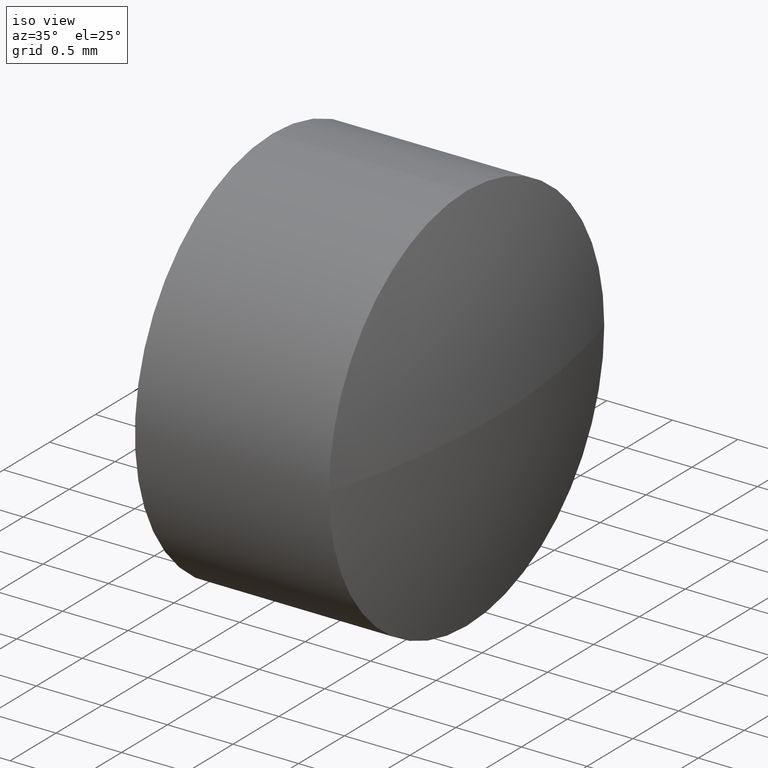
[diagram: clean part render]
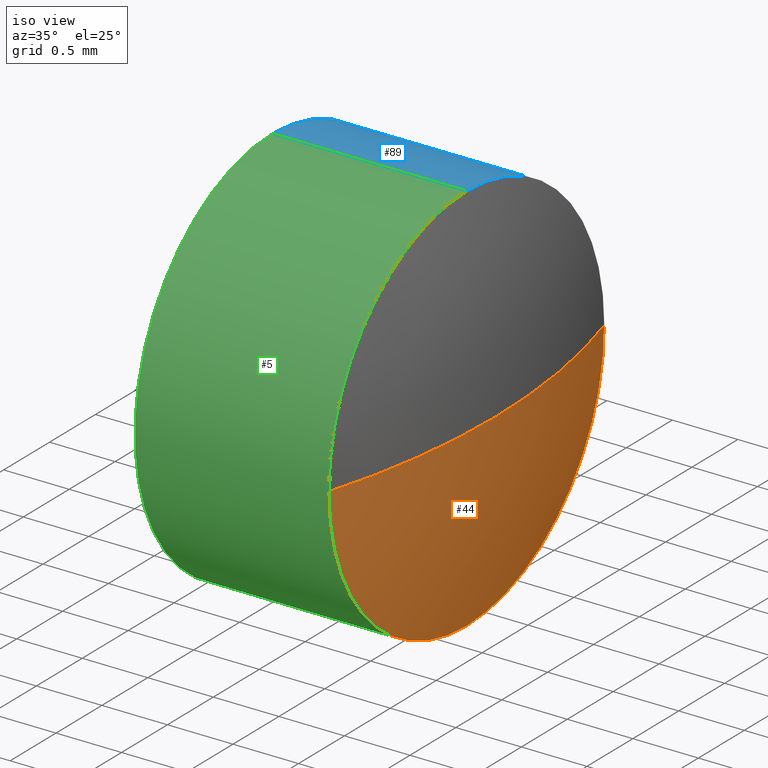
[diagram: same view with three faces highlighted in distinct colors, each labeled with its STEP entity id]
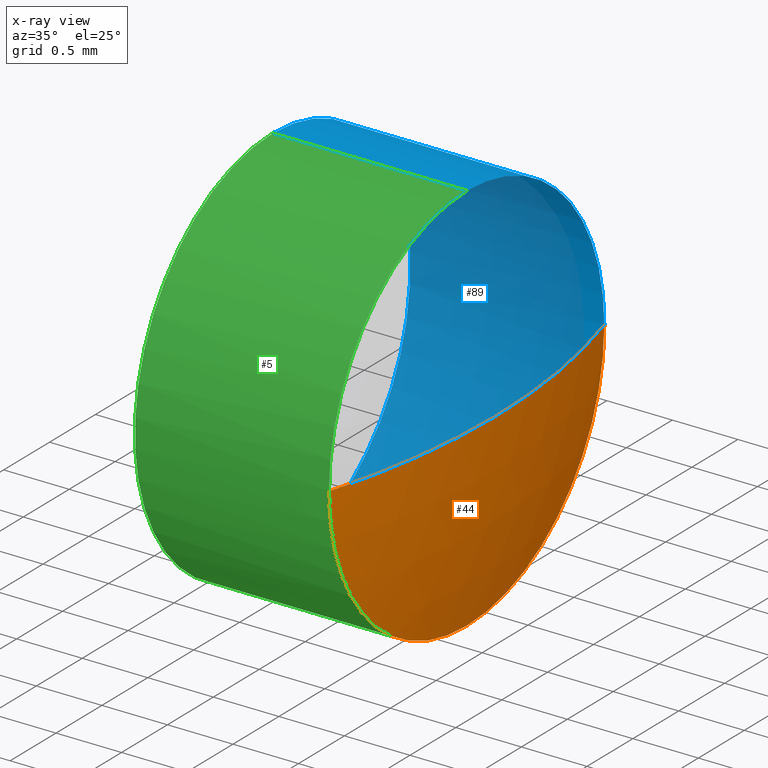
[diagram: x-ray of the same camera — body ghosted, the three highlighted faces saturated]
A machine part, iso view with three faces highlighted in distinct colors.
The next image is the same camera in x-ray (body ghosted, the three faces saturated) — at least one of them is partly hidden behind the body in this view.
Their STEP definitions:

[orange] entity #44 — the highlighted spherical surface has radius 5.2232 mm.
#2 = ORIENTED_EDGE ( 'NONE', *, *, #38, .F. ) ;
#19 = CARTESIAN_POINT ( 'NONE',  ( 477.2783291331324400, 73.14784035914851800, 0.0000000000000000000 ) ) ;
#30 = CARTESIAN_POINT ( 'NONE',  ( 472.2751274152541300, 73.14784035914854600, 0.0000000000000000000 ) ) ;
#33 = EDGE_CURVE ( 'NONE', #114, #93, #42, .T. ) ;
#38 = EDGE_CURVE ( 'NONE', #126, #114, #118, .T. ) ;
#42 = CIRCLE ( 'NONE', #182, 1.499999999984999600 ) ;
#44 = ADVANCED_FACE ( 'NONE', ( #150 ), #186, .T. ) ;
#55 = EDGE_CURVE ( 'NONE', #110, #93, #81, .T. ) ;
#59 = EDGE_LOOP ( 'NONE', ( #153, #170, #103, #2 ) ) ;
#60 = CARTESIAN_POINT ( 'NONE',  ( 477.2783291331324400, 73.14784035914851800, 0.0000000000000000000 ) ) ;
#63 = AXIS2_PLACEMENT_3D ( 'NONE', #60, #133, #164 ) ;
#64 = CARTESIAN_POINT ( 'NONE',  ( 477.4983474402708900, 73.14784035914854600, 0.0000000000000000000 ) ) ;
#72 = DIRECTION ( 'NONE',  ( 0.0000000000000000000, 0.0000000000000000000, 1.000000000000000000 ) ) ;
#76 = CARTESIAN_POINT ( 'NONE',  ( 477.2783291331324400, 74.64784035913355400, 1.836970198702661100E-016 ) ) ;
#78 = CARTESIAN_POINT ( 'NONE',  ( 477.2783291331324400, 73.14784035914851800, -1.499999999984999600 ) ) ;
#81 = CIRCLE ( 'NONE', #165, 5.223220025016739300 ) ;
#93 = VERTEX_POINT ( 'NONE', #167 ) ;
#102 = AXIS2_PLACEMENT_3D ( 'NONE', #158, #125, #141 ) ;
#103 = ORIENTED_EDGE ( 'NONE', *, *, #33, .F. ) ;
#107 = DIRECTION ( 'NONE',  ( 0.0000000000000000000, 0.0000000000000000000, 1.000000000000000000 ) ) ;
#108 = DIRECTION ( 'NONE',  ( 0.0000000000000000000, 0.0000000000000000000, -1.000000000000000000 ) ) ;
#110 = VERTEX_POINT ( 'NONE', #64 ) ;
#114 = VERTEX_POINT ( 'NONE', #78 ) ;
#118 = CIRCLE ( 'NONE', #63, 1.499999999984999600 ) ;
#121 = CARTESIAN_POINT ( 'NONE',  ( 472.2751274152541300, 73.14784035914854600, 0.0000000000000000000 ) ) ;
#124 = DIRECTION ( 'NONE',  ( 0.0000000000000000000, -1.000000000000000000, 0.0000000000000000000 ) ) ;
#125 = DIRECTION ( 'NONE',  ( 0.0000000000000000000, -1.224646799147353200E-016, 1.000000000000000000 ) ) ;
#126 = VERTEX_POINT ( 'NONE', #76 ) ;
#130 = DIRECTION ( 'NONE',  ( -1.000000000000000000, -0.0000000000000000000, -0.0000000000000000000 ) ) ;
#133 = DIRECTION ( 'NONE',  ( -1.000000000000000000, -0.0000000000000000000, -0.0000000000000000000 ) ) ;
#141 = DIRECTION ( 'NONE',  ( 0.0000000000000000000, -1.000000000000000000, -1.224646799147353000E-016 ) ) ;
#150 = FACE_OUTER_BOUND ( 'NONE', #59, .T. ) ;
#153 = ORIENTED_EDGE ( 'NONE', *, *, #174, .F. ) ;
#155 = DIRECTION ( 'NONE',  ( -1.000000000000000000, 0.0000000000000000000, 0.0000000000000000000 ) ) ;
#158 = CARTESIAN_POINT ( 'NONE',  ( 472.2751274152541300, 73.14784035914854600, 0.0000000000000000000 ) ) ;
#159 = AXIS2_PLACEMENT_3D ( 'NONE', #121, #107, #124 ) ;
#164 = DIRECTION ( 'NONE',  ( 0.0000000000000000000, 0.0000000000000000000, 1.000000000000000000 ) ) ;
#165 = AXIS2_PLACEMENT_3D ( 'NONE', #30, #108, #155 ) ;
#167 = CARTESIAN_POINT ( 'NONE',  ( 477.2783291331324400, 71.64784035916352400, 0.0000000000000000000 ) ) ;
#170 = ORIENTED_EDGE ( 'NONE', *, *, #55, .T. ) ;
#174 = EDGE_CURVE ( 'NONE', #110, #126, #179, .T. ) ;
#179 = CIRCLE ( 'NONE', #102, 5.223220025016725100 ) ;
#182 = AXIS2_PLACEMENT_3D ( 'NONE', #19, #130, #72 ) ;
#186 = SPHERICAL_SURFACE ( 'NONE', #159, 5.223220025016723300 ) ;

[blue] entity #89 — the highlighted cylindrical surface (partial cylindrical patch) has radius 1.5 mm, axis along (-1, -0, -0).
#7 = DIRECTION ( 'NONE',  ( 0.0000000000000000000, 0.0000000000000000000, 1.000000000000000000 ) ) ;
#10 = CARTESIAN_POINT ( 'NONE',  ( 475.5668287604860300, 73.14784035914851800, -1.499999999984999600 ) ) ;
#11 = CIRCLE ( 'NONE', #99, 1.499999999984999600 ) ;
#12 = CARTESIAN_POINT ( 'NONE',  ( 477.2783291331324400, 73.14784035914851800, 1.499999999984999600 ) ) ;
#16 = EDGE_LOOP ( 'NONE', ( #177, #145, #34, #163, #134 ) ) ;
#18 = EDGE_CURVE ( 'NONE', #175, #160, #74, .T. ) ;
#29 = VECTOR ( 'NONE', #149, 1000.000000000000000 ) ;
#34 = ORIENTED_EDGE ( 'NONE', *, *, #115, .F. ) ;
#35 = DIRECTION ( 'NONE',  ( 0.0000000000000000000, 0.0000000000000000000, 1.000000000000000000 ) ) ;
#38 = EDGE_CURVE ( 'NONE', #126, #114, #118, .T. ) ;
#43 = AXIS2_PLACEMENT_3D ( 'NONE', #80, #183, #66 ) ;
#50 = EDGE_CURVE ( 'NONE', #175, #126, #11, .T. ) ;
#53 = VECTOR ( 'NONE', #91, 1000.000000000000000 ) ;
#58 = CIRCLE ( 'NONE', #43, 1.499999999984999600 ) ;
#60 = CARTESIAN_POINT ( 'NONE',  ( 477.2783291331324400, 73.14784035914851800, 0.0000000000000000000 ) ) ;
#63 = AXIS2_PLACEMENT_3D ( 'NONE', #60, #133, #164 ) ;
#65 = VERTEX_POINT ( 'NONE', #154 ) ;
#66 = DIRECTION ( 'NONE',  ( 0.0000000000000000000, 0.0000000000000000000, 1.000000000000000000 ) ) ;
#74 = LINE ( 'NONE', #88, #29 ) ;
#76 = CARTESIAN_POINT ( 'NONE',  ( 477.2783291331324400, 74.64784035913355400, 1.836970198702661100E-016 ) ) ;
#78 = CARTESIAN_POINT ( 'NONE',  ( 477.2783291331324400, 73.14784035914851800, -1.499999999984999600 ) ) ;
#80 = CARTESIAN_POINT ( 'NONE',  ( 475.7983291331472600, 73.14784035914851800, 0.0000000000000000000 ) ) ;
#88 = CARTESIAN_POINT ( 'NONE',  ( 475.5668287604860300, 73.14784035914851800, 1.499999999984999600 ) ) ;
#89 = ADVANCED_FACE ( 'NONE', ( #161 ), #148, .T. ) ;
#91 = DIRECTION ( 'NONE',  ( -1.000000000000000000, -0.0000000000000000000, -0.0000000000000000000 ) ) ;
#92 = LINE ( 'NONE', #10, #53 ) ;
#94 = DIRECTION ( 'NONE',  ( -1.000000000000000000, -0.0000000000000000000, -0.0000000000000000000 ) ) ;
#99 = AXIS2_PLACEMENT_3D ( 'NONE', #119, #94, #7 ) ;
#114 = VERTEX_POINT ( 'NONE', #78 ) ;
#115 = EDGE_CURVE ( 'NONE', #160, #65, #58, .T. ) ;
#117 = EDGE_CURVE ( 'NONE', #114, #65, #92, .T. ) ;
#118 = CIRCLE ( 'NONE', #63, 1.499999999984999600 ) ;
#119 = CARTESIAN_POINT ( 'NONE',  ( 477.2783291331324400, 73.14784035914851800, 0.0000000000000000000 ) ) ;
#126 = VERTEX_POINT ( 'NONE', #76 ) ;
#133 = DIRECTION ( 'NONE',  ( -1.000000000000000000, -0.0000000000000000000, -0.0000000000000000000 ) ) ;
#134 = ORIENTED_EDGE ( 'NONE', *, *, #50, .T. ) ;
#135 = DIRECTION ( 'NONE',  ( -1.000000000000000000, -0.0000000000000000000, -0.0000000000000000000 ) ) ;
#137 = CARTESIAN_POINT ( 'NONE',  ( 475.7983291331472600, 73.14784035914851800, 1.499999999984999600 ) ) ;
#145 = ORIENTED_EDGE ( 'NONE', *, *, #117, .T. ) ;
#148 = CYLINDRICAL_SURFACE ( 'NONE', #171, 1.499999999984999600 ) ;
#149 = DIRECTION ( 'NONE',  ( -1.000000000000000000, -0.0000000000000000000, -0.0000000000000000000 ) ) ;
#154 = CARTESIAN_POINT ( 'NONE',  ( 475.7983291331472600, 73.14784035914851800, -1.499999999984999600 ) ) ;
#160 = VERTEX_POINT ( 'NONE', #137 ) ;
#161 = FACE_OUTER_BOUND ( 'NONE', #16, .T. ) ;
#163 = ORIENTED_EDGE ( 'NONE', *, *, #18, .F. ) ;
#164 = DIRECTION ( 'NONE',  ( 0.0000000000000000000, 0.0000000000000000000, 1.000000000000000000 ) ) ;
#168 = CARTESIAN_POINT ( 'NONE',  ( 475.5668287604860300, 73.14784035914851800, 0.0000000000000000000 ) ) ;
#171 = AXIS2_PLACEMENT_3D ( 'NONE', #168, #135, #35 ) ;
#175 = VERTEX_POINT ( 'NONE', #12 ) ;
#177 = ORIENTED_EDGE ( 'NONE', *, *, #38, .T. ) ;
#183 = DIRECTION ( 'NONE',  ( -1.000000000000000000, -0.0000000000000000000, -0.0000000000000000000 ) ) ;

[green] entity #5 — the highlighted cylindrical surface (partial cylindrical patch) has radius 1.5 mm, axis along (-1, -0, -0).
#3 = CYLINDRICAL_SURFACE ( 'NONE', #140, 1.499999999984999600 ) ;
#5 = ADVANCED_FACE ( 'NONE', ( #84 ), #3, .T. ) ;
#9 = DIRECTION ( 'NONE',  ( -1.000000000000000000, -0.0000000000000000000, -0.0000000000000000000 ) ) ;
#10 = CARTESIAN_POINT ( 'NONE',  ( 475.5668287604860300, 73.14784035914851800, -1.499999999984999600 ) ) ;
#12 = CARTESIAN_POINT ( 'NONE',  ( 477.2783291331324400, 73.14784035914851800, 1.499999999984999600 ) ) ;
#15 = DIRECTION ( 'NONE',  ( -1.000000000000000000, -0.0000000000000000000, -0.0000000000000000000 ) ) ;
#18 = EDGE_CURVE ( 'NONE', #175, #160, #74, .T. ) ;
#19 = CARTESIAN_POINT ( 'NONE',  ( 477.2783291331324400, 73.14784035914851800, 0.0000000000000000000 ) ) ;
#20 = DIRECTION ( 'NONE',  ( -1.000000000000000000, -0.0000000000000000000, -0.0000000000000000000 ) ) ;
#24 = ORIENTED_EDGE ( 'NONE', *, *, #86, .T. ) ;
#28 = CIRCLE ( 'NONE', #123, 1.499999999984999600 ) ;
#29 = VECTOR ( 'NONE', #149, 1000.000000000000000 ) ;
#33 = EDGE_CURVE ( 'NONE', #114, #93, #42, .T. ) ;
#39 = EDGE_LOOP ( 'NONE', ( #116, #98, #24, #51, #69 ) ) ;
#41 = EDGE_CURVE ( 'NONE', #65, #160, #70, .T. ) ;
#42 = CIRCLE ( 'NONE', #182, 1.499999999984999600 ) ;
#45 = CARTESIAN_POINT ( 'NONE',  ( 475.7983291331472600, 73.14784035914851800, 0.0000000000000000000 ) ) ;
#51 = ORIENTED_EDGE ( 'NONE', *, *, #18, .T. ) ;
#53 = VECTOR ( 'NONE', #91, 1000.000000000000000 ) ;
#61 = DIRECTION ( 'NONE',  ( 0.0000000000000000000, 0.0000000000000000000, 1.000000000000000000 ) ) ;
#65 = VERTEX_POINT ( 'NONE', #154 ) ;
#69 = ORIENTED_EDGE ( 'NONE', *, *, #41, .F. ) ;
#70 = CIRCLE ( 'NONE', #132, 1.499999999984999600 ) ;
#72 = DIRECTION ( 'NONE',  ( 0.0000000000000000000, 0.0000000000000000000, 1.000000000000000000 ) ) ;
#74 = LINE ( 'NONE', #88, #29 ) ;
#78 = CARTESIAN_POINT ( 'NONE',  ( 477.2783291331324400, 73.14784035914851800, -1.499999999984999600 ) ) ;
#84 = FACE_OUTER_BOUND ( 'NONE', #39, .T. ) ;
#86 = EDGE_CURVE ( 'NONE', #93, #175, #28, .T. ) ;
#87 = DIRECTION ( 'NONE',  ( 0.0000000000000000000, 0.0000000000000000000, 1.000000000000000000 ) ) ;
#88 = CARTESIAN_POINT ( 'NONE',  ( 475.5668287604860300, 73.14784035914851800, 1.499999999984999600 ) ) ;
#91 = DIRECTION ( 'NONE',  ( -1.000000000000000000, -0.0000000000000000000, -0.0000000000000000000 ) ) ;
#92 = LINE ( 'NONE', #10, #53 ) ;
#93 = VERTEX_POINT ( 'NONE', #167 ) ;
#98 = ORIENTED_EDGE ( 'NONE', *, *, #33, .T. ) ;
#104 = CARTESIAN_POINT ( 'NONE',  ( 475.5668287604860300, 73.14784035914851800, 0.0000000000000000000 ) ) ;
#114 = VERTEX_POINT ( 'NONE', #78 ) ;
#116 = ORIENTED_EDGE ( 'NONE', *, *, #117, .F. ) ;
#117 = EDGE_CURVE ( 'NONE', #114, #65, #92, .T. ) ;
#123 = AXIS2_PLACEMENT_3D ( 'NONE', #180, #9, #61 ) ;
#130 = DIRECTION ( 'NONE',  ( -1.000000000000000000, -0.0000000000000000000, -0.0000000000000000000 ) ) ;
#132 = AXIS2_PLACEMENT_3D ( 'NONE', #45, #20, #152 ) ;
#137 = CARTESIAN_POINT ( 'NONE',  ( 475.7983291331472600, 73.14784035914851800, 1.499999999984999600 ) ) ;
#140 = AXIS2_PLACEMENT_3D ( 'NONE', #104, #15, #87 ) ;
#149 = DIRECTION ( 'NONE',  ( -1.000000000000000000, -0.0000000000000000000, -0.0000000000000000000 ) ) ;
#152 = DIRECTION ( 'NONE',  ( 0.0000000000000000000, 0.0000000000000000000, 1.000000000000000000 ) ) ;
#154 = CARTESIAN_POINT ( 'NONE',  ( 475.7983291331472600, 73.14784035914851800, -1.499999999984999600 ) ) ;
#160 = VERTEX_POINT ( 'NONE', #137 ) ;
#167 = CARTESIAN_POINT ( 'NONE',  ( 477.2783291331324400, 71.64784035916352400, 0.0000000000000000000 ) ) ;
#175 = VERTEX_POINT ( 'NONE', #12 ) ;
#180 = CARTESIAN_POINT ( 'NONE',  ( 477.2783291331324400, 73.14784035914851800, 0.0000000000000000000 ) ) ;
#182 = AXIS2_PLACEMENT_3D ( 'NONE', #19, #130, #72 ) ;